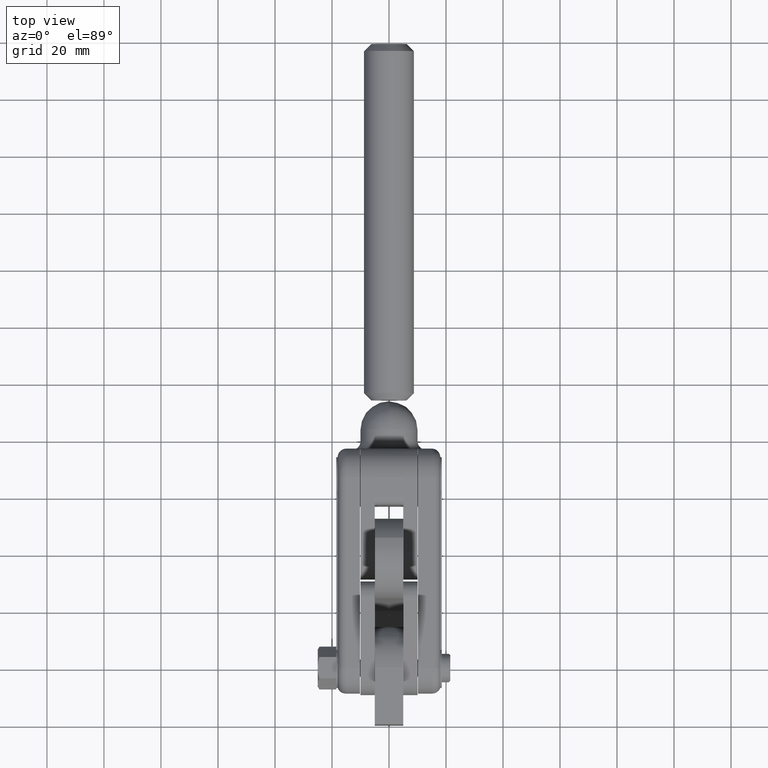
[diagram: clean part render]
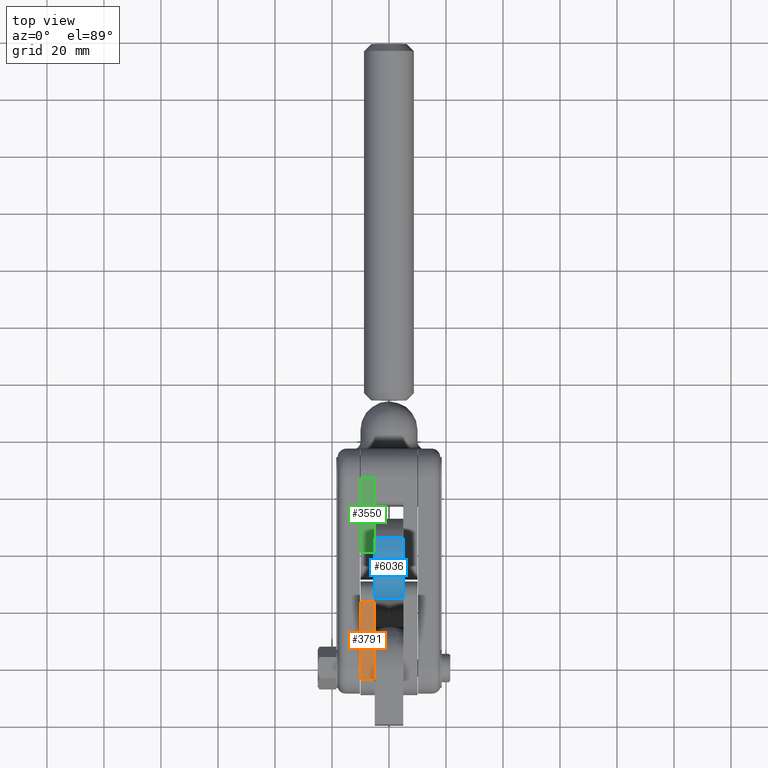
[diagram: same view with three faces highlighted in distinct colors, each labeled with its STEP entity id]
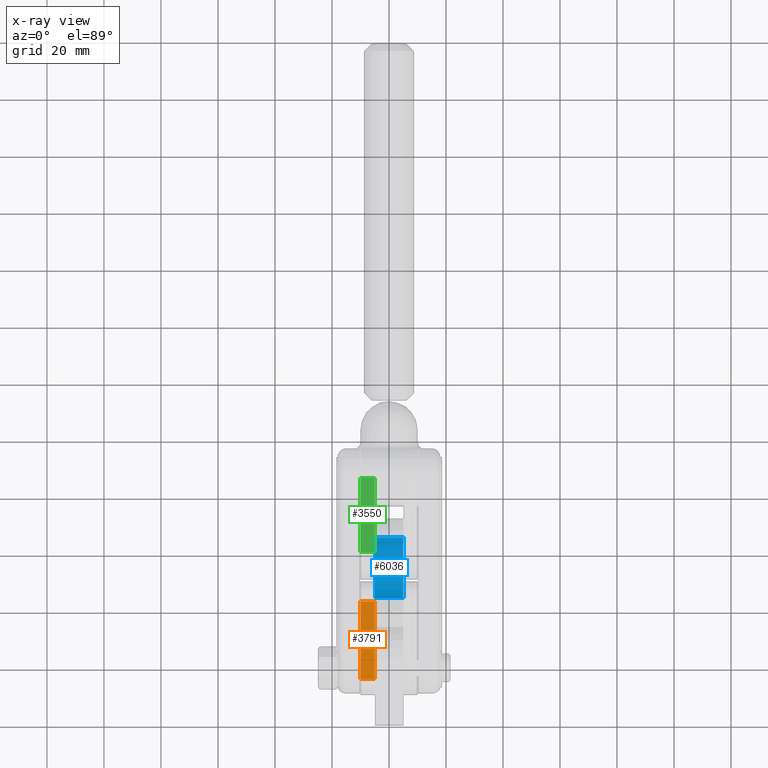
[diagram: x-ray of the same camera — body ghosted, the three highlighted faces saturated]
A machine part, top view with three faces highlighted in distinct colors.
The next image is the same camera in x-ray (body ghosted, the three faces saturated) — at least one of them is partly hidden behind the body in this view.
Their STEP definitions:

[orange] entity #3791 — the highlighted planar face has unit normal (0, 0.4183, -0.9083).
#81 = DIRECTION ( 'NONE',  ( 9.620017879122414800E-016, 0.9083070954747252100, 0.4183039807487711800 ) ) ;
#171 = EDGE_CURVE ( 'NONE', #6024, #4875, #6258, .T. ) ;
#435 = CARTESIAN_POINT ( 'NONE',  ( -10.00000000000001800, 16.02611218288668100, 8.628917407009879500 ) ) ;
#571 = ORIENTED_EDGE ( 'NONE', *, *, #4359, .T. ) ;
#644 = CARTESIAN_POINT ( 'NONE',  ( -10.00000000000001800, 16.02611218288668500, 8.628917407009879500 ) ) ;
#651 = DIRECTION ( 'NONE',  ( 1.000000000000000000, -9.612196021735986800E-016, -2.125707787657255000E-016 ) ) ;
#676 = EDGE_CURVE ( 'NONE', #3519, #1034, #3104, .T. ) ;
#804 = DIRECTION ( 'NONE',  ( 1.000000000000000000, -9.612196021735986800E-016, -2.125707787657255000E-016 ) ) ;
#1034 = VERTEX_POINT ( 'NONE', #6685 ) ;
#1175 = VECTOR ( 'NONE', #651, 1000.000000000000000 ) ;
#1464 = LINE ( 'NONE', #5705, #5546 ) ;
#1579 = FACE_OUTER_BOUND ( 'NONE', #2104, .T. ) ;
#1709 = ORIENTED_EDGE ( 'NONE', *, *, #5986, .F. ) ;
#1915 = PLANE ( 'NONE',  #4103 ) ;
#1978 = ORIENTED_EDGE ( 'NONE', *, *, #676, .T. ) ;
#2104 = EDGE_LOOP ( 'NONE', ( #1709, #4311, #571, #1978 ) ) ;
#3019 = VECTOR ( 'NONE', #4533, 1000.000000000000100 ) ;
#3104 = LINE ( 'NONE', #644, #3984 ) ;
#3519 = VERTEX_POINT ( 'NONE', #6763 ) ;
#3791 = ADVANCED_FACE ( 'NONE', ( #1579 ), #1915, .F. ) ;
#3984 = VECTOR ( 'NONE', #804, 1000.000000000000000 ) ;
#4103 = AXIS2_PLACEMENT_3D ( 'NONE', #435, #5358, #81 ) ;
#4270 = CARTESIAN_POINT ( 'NONE',  ( -9.999999999999987600, 43.01318641564001400, 21.05731374627136500 ) ) ;
#4311 = ORIENTED_EDGE ( 'NONE', *, *, #171, .F. ) ;
#4359 = EDGE_CURVE ( 'NONE', #6024, #3519, #5805, .T. ) ;
#4533 = DIRECTION ( 'NONE',  ( -9.620017879122414800E-016, -0.9083070954747252100, -0.4183039807487711800 ) ) ;
#4875 = VERTEX_POINT ( 'NONE', #5156 ) ;
#5102 = DIRECTION ( 'NONE',  ( -9.620017879122414800E-016, -0.9083070954747252100, -0.4183039807487711800 ) ) ;
#5156 = CARTESIAN_POINT ( 'NONE',  ( -4.999999999999988500, 43.01318641564000700, 21.05731374627136500 ) ) ;
#5358 = DIRECTION ( 'NONE',  ( 2.090024393194698900E-016, 0.4183039807487712300, -0.9083070954747253200 ) ) ;
#5513 = CARTESIAN_POINT ( 'NONE',  ( -9.999999999999987600, 43.01318641564001400, 21.05731374627136500 ) ) ;
#5546 = VECTOR ( 'NONE', #5102, 1000.000000000000100 ) ;
#5705 = CARTESIAN_POINT ( 'NONE',  ( -5.000000000000017800, 16.02611218288667800, 8.628917407009879500 ) ) ;
#5805 = LINE ( 'NONE', #6337, #3019 ) ;
#5986 = EDGE_CURVE ( 'NONE', #4875, #1034, #1464, .T. ) ;
#6024 = VERTEX_POINT ( 'NONE', #4270 ) ;
#6258 = LINE ( 'NONE', #5513, #1175 ) ;
#6337 = CARTESIAN_POINT ( 'NONE',  ( -10.00000000000001800, 16.02611218288668100, 8.628917407009879500 ) ) ;
#6685 = CARTESIAN_POINT ( 'NONE',  ( -5.000000000000017800, 16.02611218288668100, 8.628917407009879500 ) ) ;
#6763 = CARTESIAN_POINT ( 'NONE',  ( -10.00000000000001800, 16.02611218288668500, 8.628917407009879500 ) ) ;

[blue] entity #6036 — the highlighted cylindrical surface (partial cylindrical patch) has radius 14.52 mm, axis along (1, -0, -0).
#24 = DIRECTION ( 'NONE',  ( 1.000000000000000000, -6.027420021713782400E-016, -1.064907734212389900E-016 ) ) ;
#125 = AXIS2_PLACEMENT_3D ( 'NONE', #1020, #24, #2020 ) ;
#158 = CARTESIAN_POINT ( 'NONE',  ( -4.999999999999973400, 65.10865803093989300, 38.36096079186864200 ) ) ;
#215 = CARTESIAN_POINT ( 'NONE',  ( 5.000000000000011500, 44.07934556247971600, 27.80839539043411800 ) ) ;
#235 = VERTEX_POINT ( 'NONE', #1933 ) ;
#265 = VECTOR ( 'NONE', #3739, 1000.000000000000000 ) ;
#407 = AXIS2_PLACEMENT_3D ( 'NONE', #3621, #4125, #3395 ) ;
#418 = CARTESIAN_POINT ( 'NONE',  ( -4.999999999999986700, 44.07934556247972300, 27.80839539043411800 ) ) ;
#496 = EDGE_CURVE ( 'NONE', #2711, #4673, #4689, .T. ) ;
#992 = AXIS2_PLACEMENT_3D ( 'NONE', #2445, #6794, #1053 ) ;
#1020 = CARTESIAN_POINT ( 'NONE',  ( -4.999999999999978700, 58.41110100082670400, 25.47790487223601000 ) ) ;
#1053 = DIRECTION ( 'NONE',  ( -1.194713137725074700E-016, -0.01428281171915594400, -0.9998979954422326800 ) ) ;
#1568 = EDGE_CURVE ( 'NONE', #235, #2531, #6694, .T. ) ;
#1605 = VECTOR ( 'NONE', #6123, 1000.000000000000000 ) ;
#1933 = CARTESIAN_POINT ( 'NONE',  ( -4.999999999999973400, 65.10865803093989300, 38.36096079186864200 ) ) ;
#1999 = ORIENTED_EDGE ( 'NONE', *, *, #496, .F. ) ;
#2020 = DIRECTION ( 'NONE',  ( -1.194713137725074700E-016, -0.01428281171915594400, -0.9998979954422326800 ) ) ;
#2388 = CYLINDRICAL_SURFACE ( 'NONE', #992, 14.51999999999998900 ) ;
#2415 = EDGE_CURVE ( 'NONE', #2531, #4673, #2867, .T. ) ;
#2445 = CARTESIAN_POINT ( 'NONE',  ( -4.999999999999978700, 58.41110100082670400, 25.47790487223601000 ) ) ;
#2452 = ORIENTED_EDGE ( 'NONE', *, *, #2415, .T. ) ;
#2531 = VERTEX_POINT ( 'NONE', #418 ) ;
#2711 = VERTEX_POINT ( 'NONE', #5340 ) ;
#2867 = LINE ( 'NONE', #4129, #1605 ) ;
#3395 = DIRECTION ( 'NONE',  ( -1.194713137725074700E-016, -0.01428281171915594400, -0.9998979954422326800 ) ) ;
#3621 = CARTESIAN_POINT ( 'NONE',  ( 5.000000000000020400, 58.41110100082669700, 25.47790487223601000 ) ) ;
#3739 = DIRECTION ( 'NONE',  ( 1.000000000000000000, -6.027420021713782400E-016, -1.064907734212389900E-016 ) ) ;
#3991 = FACE_OUTER_BOUND ( 'NONE', #6615, .T. ) ;
#4125 = DIRECTION ( 'NONE',  ( 1.000000000000000000, -6.027420021713782400E-016, -1.064907734212389900E-016 ) ) ;
#4129 = CARTESIAN_POINT ( 'NONE',  ( -4.999999999999986700, 44.07934556247972300, 27.80839539043411800 ) ) ;
#4477 = LINE ( 'NONE', #158, #265 ) ;
#4673 = VERTEX_POINT ( 'NONE', #215 ) ;
#4689 = CIRCLE ( 'NONE', #407, 14.51999999999998900 ) ;
#5340 = CARTESIAN_POINT ( 'NONE',  ( 5.000000000000024900, 65.10865803093987800, 38.36096079186864200 ) ) ;
#5785 = ORIENTED_EDGE ( 'NONE', *, *, #6401, .F. ) ;
#6036 = ADVANCED_FACE ( 'NONE', ( #3991 ), #2388, .T. ) ;
#6123 = DIRECTION ( 'NONE',  ( 1.000000000000000000, -6.027420021713782400E-016, -1.064907734212389900E-016 ) ) ;
#6401 = EDGE_CURVE ( 'NONE', #235, #2711, #4477, .T. ) ;
#6486 = ORIENTED_EDGE ( 'NONE', *, *, #1568, .T. ) ;
#6615 = EDGE_LOOP ( 'NONE', ( #5785, #6486, #2452, #1999 ) ) ;
#6694 = CIRCLE ( 'NONE', #125, 14.51999999999998900 ) ;
#6794 = DIRECTION ( 'NONE',  ( 1.000000000000000000, -6.027420021713782400E-016, -1.064907734212389900E-016 ) ) ;

[green] entity #3550 — the highlighted planar face has unit normal (-0, 0.0478, -0.9989).
#91 = PLANE ( 'NONE',  #4933 ) ;
#128 = VERTEX_POINT ( 'NONE', #889 ) ;
#212 = VECTOR ( 'NONE', #4952, 1000.000000000000100 ) ;
#312 = VECTOR ( 'NONE', #4000, 1000.000000000000000 ) ;
#889 = CARTESIAN_POINT ( 'NONE',  ( -4.999999999999992000, 60.55171226827642500, 8.745746169421920500 ) ) ;
#1007 = DIRECTION ( 'NONE',  ( -1.000000000000000000, 8.709792266541801100E-019, 1.320165563825618200E-018 ) ) ;
#1093 = VERTEX_POINT ( 'NONE', #4018 ) ;
#1204 = CARTESIAN_POINT ( 'NONE',  ( -4.999999999999992000, 86.52199127690381900, 9.988568849472065000 ) ) ;
#1251 = CARTESIAN_POINT ( 'NONE',  ( -9.999999999999991100, 60.55171226827642500, 8.745746169421920500 ) ) ;
#1350 = CARTESIAN_POINT ( 'NONE',  ( -4.999999999999992000, 60.55171226827642500, 8.745746169421920500 ) ) ;
#1875 = DIRECTION ( 'NONE',  ( -9.330886627335089900E-019, -0.9988568849472075900, -0.04780087230962088600 ) ) ;
#1962 = CARTESIAN_POINT ( 'NONE',  ( -4.999999999999992000, 86.52199127690381900, 9.988568849472065000 ) ) ;
#2501 = EDGE_LOOP ( 'NONE', ( #3940, #5775, #4229, #4959 ) ) ;
#2812 = EDGE_CURVE ( 'NONE', #1093, #5588, #4447, .T. ) ;
#2949 = FACE_OUTER_BOUND ( 'NONE', #2501, .T. ) ;
#3118 = EDGE_CURVE ( 'NONE', #128, #5588, #5585, .T. ) ;
#3153 = LINE ( 'NONE', #6495, #4708 ) ;
#3550 = ADVANCED_FACE ( 'NONE', ( #2949 ), #91, .F. ) ;
#3784 = CARTESIAN_POINT ( 'NONE',  ( -9.999999999999991100, 86.52199127690381900, 9.988568849472065000 ) ) ;
#3940 = ORIENTED_EDGE ( 'NONE', *, *, #2812, .T. ) ;
#4000 = DIRECTION ( 'NONE',  ( -1.000000000000000000, 8.709792266541801100E-019, 1.320165563825618200E-018 ) ) ;
#4018 = CARTESIAN_POINT ( 'NONE',  ( -9.999999999999991100, 86.52199127690381900, 9.988568849472065000 ) ) ;
#4229 = ORIENTED_EDGE ( 'NONE', *, *, #5205, .F. ) ;
#4247 = LINE ( 'NONE', #1962, #212 ) ;
#4447 = LINE ( 'NONE', #3784, #5669 ) ;
#4546 = DIRECTION ( 'NONE',  ( 9.330886627335089900E-019, 0.9988568849472075900, 0.04780087230962088600 ) ) ;
#4708 = VECTOR ( 'NONE', #1007, 1000.000000000000000 ) ;
#4933 = AXIS2_PLACEMENT_3D ( 'NONE', #5758, #5357, #4546 ) ;
#4952 = DIRECTION ( 'NONE',  ( -9.330886627335089900E-019, -0.9988568849472075900, -0.04780087230962088600 ) ) ;
#4959 = ORIENTED_EDGE ( 'NONE', *, *, #6648, .T. ) ;
#5205 = EDGE_CURVE ( 'NONE', #6520, #128, #4247, .T. ) ;
#5357 = DIRECTION ( 'NONE',  ( -1.277022895899802400E-018, 0.04780087230962089300, -0.9988568849472077000 ) ) ;
#5585 = LINE ( 'NONE', #1350, #312 ) ;
#5588 = VERTEX_POINT ( 'NONE', #1251 ) ;
#5669 = VECTOR ( 'NONE', #1875, 1000.000000000000100 ) ;
#5758 = CARTESIAN_POINT ( 'NONE',  ( -4.999999999999992000, 86.52199127690381900, 9.988568849472065000 ) ) ;
#5775 = ORIENTED_EDGE ( 'NONE', *, *, #3118, .F. ) ;
#6495 = CARTESIAN_POINT ( 'NONE',  ( -4.999999999999992000, 86.52199127690381900, 9.988568849472065000 ) ) ;
#6520 = VERTEX_POINT ( 'NONE', #1204 ) ;
#6648 = EDGE_CURVE ( 'NONE', #6520, #1093, #3153, .T. ) ;